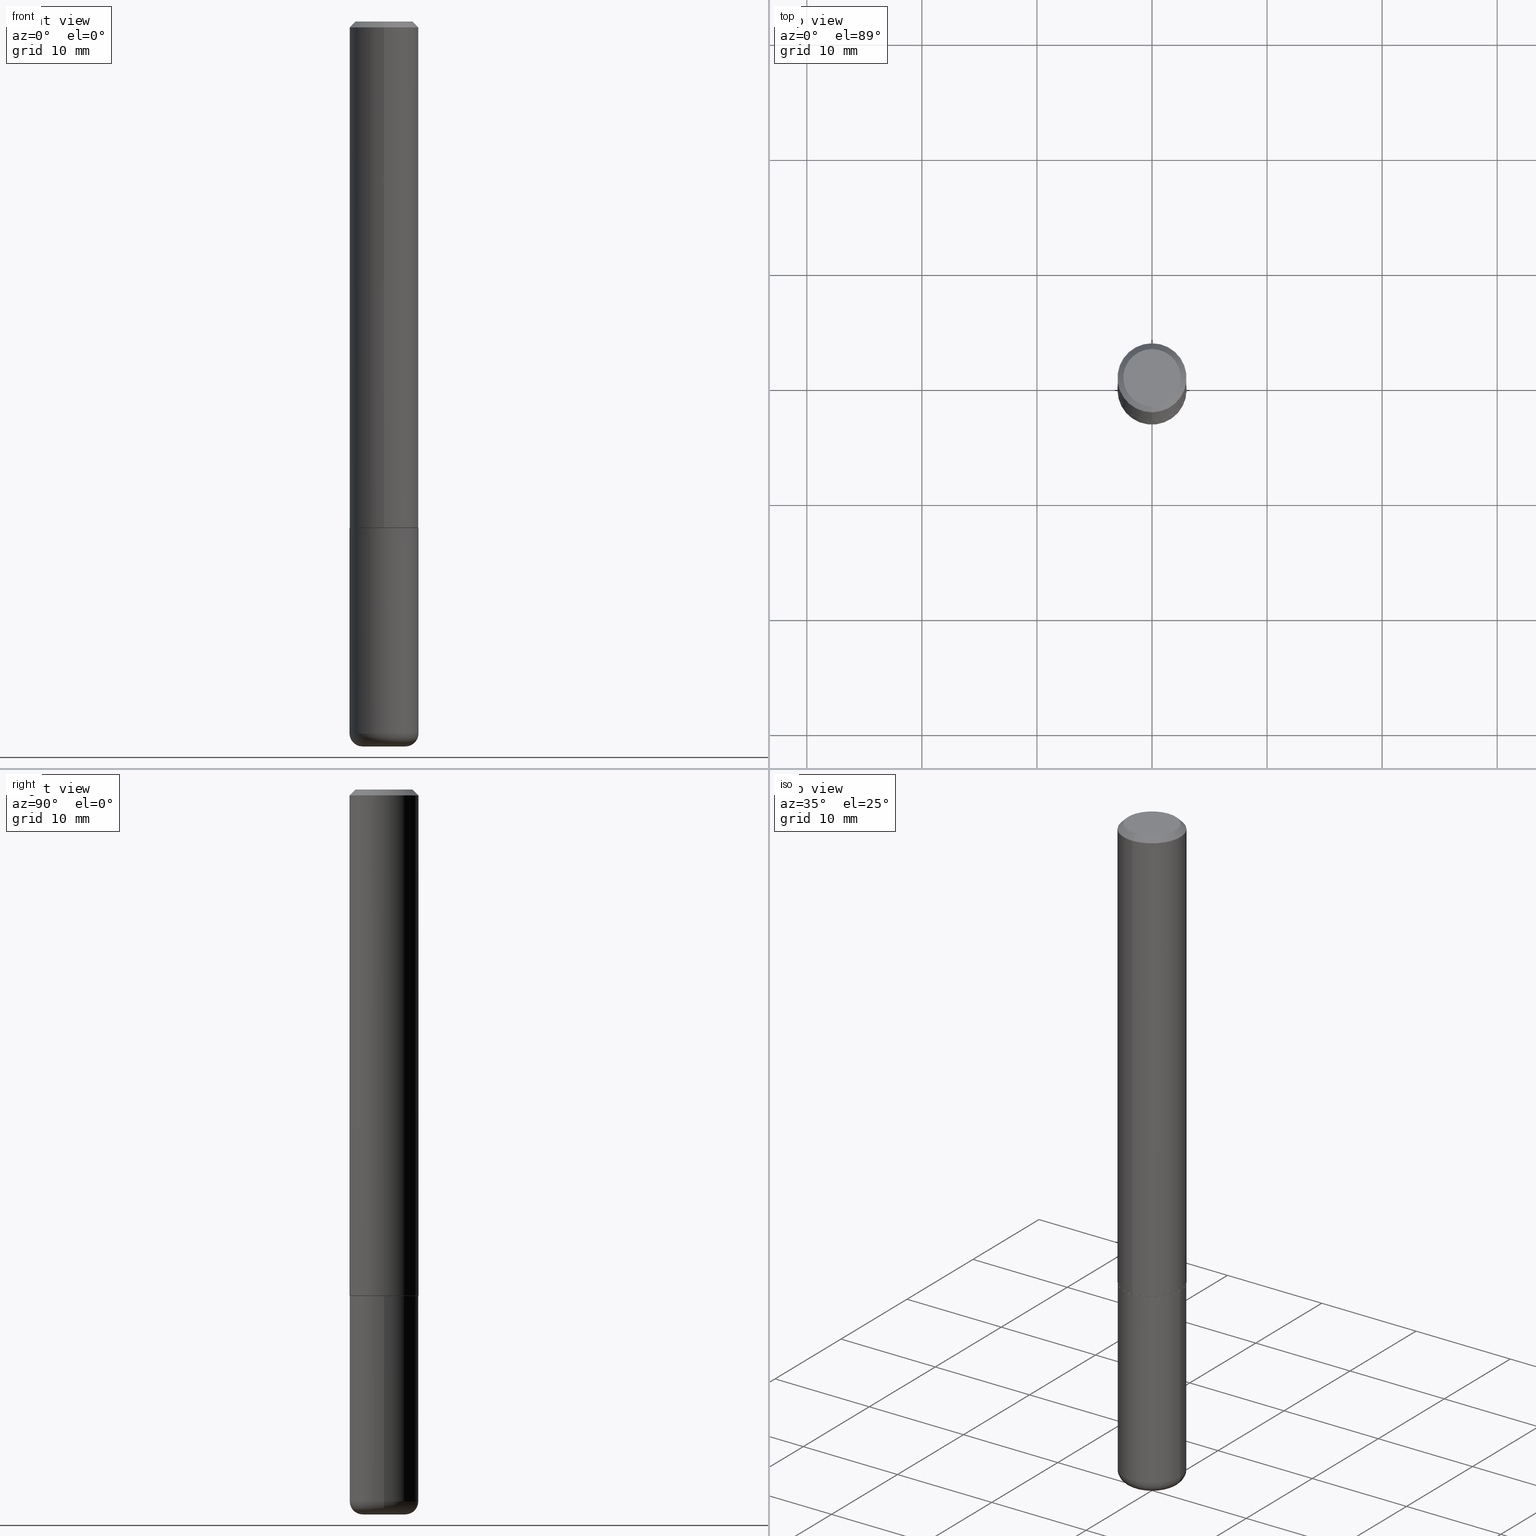
[diagram: canonical four-view strip — front | top / right | iso, engineering-drawing reading convention]
A machine part, canonical four-view strip (front | top / right | iso — engineering-drawing reading convention). The complete STEP part file that produces these views, byte-faithful:
ISO-10303-21;
HEADER;
FILE_DESCRIPTION (( 'STEP AP203' ),
    '1' );
FILE_NAME ('46207.STEP',
    '2024-03-04T18:51:56',
    ( '' ),
    ( '' ),
    'SwSTEP 2.0',
    'SolidWorks 2023',
    '' );
FILE_SCHEMA (( 'CONFIG_CONTROL_DESIGN' ));
ENDSEC;

DATA;
#1 = FACE_OUTER_BOUND ( 'NONE', #54, .T. ) ;
#2 = ADVANCED_FACE ( 'NONE', ( #194 ), #220, .T. ) ;
#3 = AXIS2_PLACEMENT_3D ( 'NONE', #95, #218, #213 ) ;
#4 = VECTOR ( 'NONE', #100, 39.37007874015748143 ) ;
#5 = CARTESIAN_POINT ( 'NONE',  ( 0.000000000000000000, 0.000000000000000000, 0.000000000000000000 ) ) ;
#6 = CARTESIAN_POINT ( 'NONE',  ( 6.065496279980993634E-29, -8.659921164732653758E-15, -2.480299999999999727 ) ) ;
#7 = ORIENTED_EDGE ( 'NONE', *, *, #37, .F. ) ;
#8 = ADVANCED_FACE ( 'NONE', ( #409 ), #376, .F. ) ;
#9 = CARTESIAN_POINT ( 'NONE',  ( 0.1181000000000000383, -6.872981015512730918E-15, -1.732300000000000173 ) ) ;
#10 =( GEOMETRIC_REPRESENTATION_CONTEXT ( 3 ) GLOBAL_UNCERTAINTY_ASSIGNED_CONTEXT ( ( #395 ) ) GLOBAL_UNIT_ASSIGNED_CONTEXT ( ( #299, #335, #173 ) ) REPRESENTATION_CONTEXT ( 'NONE', 'WORKASPACE' ) );
#11 = CARTESIAN_POINT ( 'NONE',  ( 0.1180999999999999273, -9.327841544853345478E-15, -2.435400000000000453 ) ) ;
#12 = EDGE_CURVE ( 'NONE', #184, #346, #63, .T. ) ;
#13 = CARTESIAN_POINT ( 'NONE',  ( 2.023801329356262435E-45, -2.867047296905476188E-31, -8.243683029204983440E-17 ) ) ;
#14 = AXIS2_PLACEMENT_3D ( 'NONE', #162, #93, #23 ) ;
#15 = APPROVAL_DATE_TIME ( #148, #232 ) ;
#16 = ORIENTED_EDGE ( 'NONE', *, *, #24, .F. ) ;
#17 = ORIENTED_EDGE ( 'NONE', *, *, #94, .F. ) ;
#18 = CALENDAR_DATE ( 2024, 4, 3 ) ;
#19 = VECTOR ( 'NONE', #417, 39.37007874015748143 ) ;
#20 = CIRCLE ( 'NONE', #367, 0.09810000000000010378 ) ;
#21 = DATE_AND_TIME ( #239, #75 ) ;
#22 = EDGE_LOOP ( 'NONE', ( #289, #51, #87, #152 ) ) ;
#23 = DIRECTION ( 'NONE',  ( -1.000000000000000000, 6.982962677686265922E-15, -4.876176775795935793E-29 ) ) ;
#24 = EDGE_CURVE ( 'NONE', #352, #89, #130, .T. ) ;
#25 = DIRECTION ( 'NONE',  ( 1.000000000000000000, -6.982962677686258033E-15, 4.883557194083110098E-29 ) ) ;
#26 = LINE ( 'NONE', #29, #283 ) ;
#27 = CARTESIAN_POINT ( 'NONE',  ( -8.246878922347489529E-16, -0.1181000000000001354, 4.107366629272151705E-16 ) ) ;
#28 = CLOSED_SHELL ( 'NONE', ( #78, #293, #351, #223, #238, #150, #273, #8 ) ) ;
#29 = CARTESIAN_POINT ( 'NONE',  ( -8.102248135368175393E-16, -0.1181000000000001077, -0.01999999999999966735 ) ) ;
#30 = LINE ( 'NONE', #286, #19 ) ;
#31 = ORIENTED_EDGE ( 'NONE', *, *, #262, .T. ) ;
#32 = CARTESIAN_POINT ( 'NONE',  ( 4.252748474709313310E-29, -6.024717368237207761E-15, -1.732300000000000173 ) ) ;
#33 = CC_DESIGN_DATE_AND_TIME_ASSIGNMENT ( #21, #371, ( #171 ) ) ;
#34 = ORIENTED_EDGE ( 'NONE', *, *, #403, .T. ) ;
#35 = DIRECTION ( 'NONE',  ( -6.982962677686265922E-15, -1.000000000000000000, 4.626330217890360659E-15 ) ) ;
#36 = AXIS2_PLACEMENT_3D ( 'NONE', #74, #172, #105 ) ;
#37 = EDGE_CURVE ( 'NONE', #160, #128, #334, .T. ) ;
#38 = DIRECTION ( 'NONE',  ( -2.454972276574099560E-29, 3.477871828342207541E-15, 1.000000000000000000 ) ) ;
#39 = DIRECTION ( 'NONE',  ( -2.445468806185136877E-29, 3.491481338843145188E-15, 1.000000000000000000 ) ) ;
#40 = CARTESIAN_POINT ( 'NONE',  ( 0.000000000000000000, 0.000000000000000000, 0.000000000000000000 ) ) ;
#41 = EDGE_LOOP ( 'NONE', ( #410, #249, #34, #206 ) ) ;
#42 = PRODUCT ( '46207', '46207', '', ( #108 ) ) ;
#43 = CIRCLE ( 'NONE', #327, 0.1181000000000000383 ) ;
#44 = DIRECTION ( 'NONE',  ( 2.454972276574099560E-29, -3.477871828342207541E-15, -1.000000000000000000 ) ) ;
#45 = EDGE_CURVE ( 'NONE', #216, #62, #43, .T. ) ;
#46 = EDGE_LOOP ( 'NONE', ( #258, #307, #197, #7 ) ) ;
#47 = PERSON_AND_ORGANIZATION ( #298, #112 ) ;
#48 = AXIS2_PLACEMENT_3D ( 'NONE', #391, #198, #319 ) ;
#49 = LOCAL_TIME ( 13, 51, 56.00000000000000000, #310 ) ;
#50 = DIRECTION ( 'NONE',  ( -2.454972276574099560E-29, 3.477871828342207541E-15, 1.000000000000000000 ) ) ;
#51 = ORIENTED_EDGE ( 'NONE', *, *, #329, .T. ) ;
#52 = EDGE_LOOP ( 'NONE', ( #287, #31, #253, #57 ) ) ;
#53 = PERSON_AND_ORGANIZATION ( #298, #112 ) ;
#54 = EDGE_LOOP ( 'NONE', ( #387, #243, #209, #308 ) ) ;
#55 = PERSON_AND_ORGANIZATION_ROLE ( 'design_owner' ) ;
#56 = EDGE_LOOP ( 'NONE', ( #242, #190, #324, #406 ) ) ;
#57 = ORIENTED_EDGE ( 'NONE', *, *, #132, .F. ) ;
#58 = APPLICATION_CONTEXT ( 'configuration controlled 3d designs of mechanical parts and assemblies' ) ;
#59 = CARTESIAN_POINT ( 'NONE',  ( 0.000000000000000000, 0.000000000000000000, 0.000000000000000000 ) ) ;
#60 = DIRECTION ( 'NONE',  ( -2.454972276574099560E-29, 3.477871828342207541E-15, 1.000000000000000000 ) ) ;
#61 = CARTESIAN_POINT ( 'NONE',  ( 0.000000000000000000, 0.000000000000000000, 0.000000000000000000 ) ) ;
#62 = VERTEX_POINT ( 'NONE', #85 ) ;
#63 = CIRCLE ( 'NONE', #88, 0.1171000000000000096 ) ;
#64 = EDGE_CURVE ( 'NONE', #352, #216, #321, .T. ) ;
#65 = DIRECTION ( 'NONE',  ( -2.454972276574099560E-29, 3.477871828342207541E-15, 1.000000000000000000 ) ) ;
#66 = DIRECTION ( 'NONE',  ( 1.000000000000000000, -6.982962677686270655E-15, 0.000000000000000000 ) ) ;
#67 = ORIENTED_EDGE ( 'NONE', *, *, #366, .T. ) ;
#68 = CARTESIAN_POINT ( 'NONE',  ( -0.07320000000000005669, -7.901903281921091934E-15, -2.480299999999999727 ) ) ;
#69 = CC_DESIGN_APPROVAL ( #232, ( #171 ) ) ;
#70 = EDGE_CURVE ( 'NONE', #325, #315, #30, .T. ) ;
#71 = FACE_OUTER_BOUND ( 'NONE', #250, .T. ) ;
#72 =( LENGTH_UNIT ( ) NAMED_UNIT ( * ) SI_UNIT ( $, .METRE. ) );
#73 = CONICAL_SURFACE ( 'NONE', #149, 0.1171000000000000096, 0.7853981633975165577 ) ;
#74 = CARTESIAN_POINT ( 'NONE',  ( 6.065496279980993634E-29, -8.659921164732653758E-15, -2.480299999999999727 ) ) ;
#75 = LOCAL_TIME ( 13, 51, 56.00000000000000000, #110 ) ;
#76 = PERSON_AND_ORGANIZATION_ROLE ( 'creator' ) ;
#77 = DIRECTION ( 'NONE',  ( -6.982962677686266711E-15, -1.000000000000000000, 2.332918867347790727E-15 ) ) ;
#78 = ADVANCED_FACE ( 'NONE', ( #374 ), #170, .T. ) ;
#79 = DIRECTION ( 'NONE',  ( -2.454972276574099560E-29, 3.477871828342207541E-15, 1.000000000000000000 ) ) ;
#80 = CIRCLE ( 'NONE', #164, 0.07320000000000005669 ) ;
#81 = CIRCLE ( 'NONE', #276, 0.1181000000000000383 ) ;
#82 = PERSON_AND_ORGANIZATION ( #298, #112 ) ;
#83 = CARTESIAN_POINT ( 'NONE',  ( 4.252748474709313310E-29, -6.024717368237207761E-15, -1.732300000000000173 ) ) ;
#84 = DIRECTION ( 'NONE',  ( 1.000000000000000000, 0.000000000000000000, 0.000000000000000000 ) ) ;
#85 = CARTESIAN_POINT ( 'NONE',  ( 8.246878922347486570E-16, 0.1180999999999999689, -0.02000000000000048614 ) ) ;
#86 = EDGE_CURVE ( 'NONE', #62, #216, #404, .T. ) ;
#87 = ORIENTED_EDGE ( 'NONE', *, *, #64, .T. ) ;
#88 = AXIS2_PLACEMENT_3D ( 'NONE', #349, #386, #277 ) ;
#89 = VERTEX_POINT ( 'NONE', #97 ) ;
#90 = DIRECTION ( 'NONE',  ( -2.454972276574098999E-29, 3.477871828342207935E-15, 1.000000000000000000 ) ) ;
#91 = DIRECTION ( 'NONE',  ( -2.454972276574099840E-29, 3.477871828342207935E-15, 1.000000000000000000 ) ) ;
#92 = ORIENTED_EDGE ( 'NONE', *, *, #12, .F. ) ;
#93 = DIRECTION ( 'NONE',  ( 2.438088387897960049E-29, -3.491481338843145188E-15, -1.000000000000000000 ) ) ;
#94 = EDGE_CURVE ( 'NONE', #160, #322, #80, .T. ) ;
#95 = CARTESIAN_POINT ( 'NONE',  ( 4.250293502432739127E-29, -6.021239496408864646E-15, -1.731300000000000283 ) ) ;
#96 = LINE ( 'NONE', #265, #405 ) ;
#97 = CARTESIAN_POINT ( 'NONE',  ( 8.391509709327008768E-16, 0.1180999999999941957, -1.731300000000000727 ) ) ;
#98 = AXIS2_PLACEMENT_3D ( 'NONE', #133, #44, #138 ) ;
#99 = EDGE_LOOP ( 'NONE', ( #182, #113, #338, #282 ) ) ;
#100 = DIRECTION ( 'NONE',  ( -2.454972276574099840E-29, 3.477871828342207935E-15, 1.000000000000000000 ) ) ;
#101 = APPLICATION_PROTOCOL_DEFINITION ( 'international standard', 'config_control_design', 1994, #372 ) ;
#102 = MANIFOLD_SOLID_BREP ( 'Body-Move/Copy2[2]', #28 ) ;
#103 = AXIS2_PLACEMENT_3D ( 'NONE', #311, #154, #156 ) ;
#104 = CARTESIAN_POINT ( 'NONE',  ( -8.246878922347070446E-16, -0.1181000000000062417, -1.731299999999999617 ) ) ;
#105 = DIRECTION ( 'NONE',  ( 1.000000000000000000, -6.982962677686279332E-15, 0.000000000000000000 ) ) ;
#106 = AXIS2_PLACEMENT_3D ( 'NONE', #211, #115, #251 ) ;
#107 = APPROVAL_PERSON_ORGANIZATION ( #53, #306, #247 ) ;
#108 = MECHANICAL_CONTEXT ( 'NONE', #372, 'mechanical' ) ;
#109 = COORDINATED_UNIVERSAL_TIME_OFFSET ( 5, 0, .BEHIND. ) ;
#110 = COORDINATED_UNIVERSAL_TIME_OFFSET ( 5, 0, .BEHIND. ) ;
#111 = AXIS2_PLACEMENT_3D ( 'NONE', #241, #79, #369 ) ;
#112 = ORGANIZATION ( 'UNSPECIFIED', 'UNSPECIFIED', '' ) ;
#113 = ORIENTED_EDGE ( 'NONE', *, *, #392, .T. ) ;
#114 = EDGE_CURVE ( 'NONE', #128, #325, #136, .T. ) ;
#115 = DIRECTION ( 'NONE',  ( -6.982962677686266711E-15, -1.000000000000000000, 3.491481338843145583E-15 ) ) ;
#116 = APPROVAL_ROLE ( '' ) ;
#117 = VERTEX_POINT ( 'NONE', #137 ) ;
#118 = FACE_OUTER_BOUND ( 'NONE', #41, .T. ) ;
#119 = ORIENTED_EDGE ( 'NONE', *, *, #333, .F. ) ;
#120 = FACE_OUTER_BOUND ( 'NONE', #46, .T. ) ;
#121 = CONICAL_SURFACE ( 'NONE', #363, 0.1181000000000000383, 0.7853981633974465026 ) ;
#122 = CONICAL_SURFACE ( 'NONE', #98, 0.1181000000000000383, 0.7853981633974465026 ) ;
#123 = CARTESIAN_POINT ( 'NONE',  ( 5.955694730583281585E-29, -8.503153652618597215E-15, -2.435400000000000009 ) ) ;
#124 = DIRECTION ( 'NONE',  ( -2.445468806185136597E-29, 3.491481338843145583E-15, 1.000000000000000000 ) ) ;
#125 = ORIENTED_EDGE ( 'NONE', *, *, #344, .F. ) ;
#126 = DIRECTION ( 'NONE',  ( -2.445468806185136597E-29, 3.491481338843145583E-15, 1.000000000000000000 ) ) ;
#127 = CARTESIAN_POINT ( 'NONE',  ( 5.955694730583282706E-29, -8.503153652618598793E-15, -2.435400000000000453 ) ) ;
#128 = VERTEX_POINT ( 'NONE', #11 ) ;
#129 = CARTESIAN_POINT ( 'NONE',  ( 4.236285612954512953E-29, -6.048293123277982656E-15, -1.732300000000000173 ) ) ;
#130 = CIRCLE ( 'NONE', #3, 0.1181000000000002187 ) ;
#131 = DIRECTION ( 'NONE',  ( 1.000000000000000000, -6.982962677686270655E-15, 0.000000000000000000 ) ) ;
#132 = EDGE_CURVE ( 'NONE', #178, #62, #139, .T. ) ;
#133 = CARTESIAN_POINT ( 'NONE',  ( 4.909944553148218457E-31, -6.955743656684441311E-17, -0.02000000000000007674 ) ) ;
#134 = CARTESIAN_POINT ( 'NONE',  ( -8.177049295570192554E-16, -0.1171000000000060326, -1.732299999999999951 ) ) ;
#135 = PRODUCT_DEFINITION_SHAPE ( 'NONE', 'NONE',  #302 ) ;
#136 = CIRCLE ( 'NONE', #317, 0.1181000000000000383 ) ;
#137 = CARTESIAN_POINT ( 'NONE',  ( -7.416198335591027009E-16, -0.09810000000000010378, 2.587423960683210956E-16 ) ) ;
#138 = DIRECTION ( 'NONE',  ( 6.982962677686265922E-15, 1.000000000000000000, -3.469747663417776213E-15 ) ) ;
#139 = LINE ( 'NONE', #235, #399 ) ;
#140 = DIRECTION ( 'NONE',  ( -2.454972276574099560E-29, 3.477871828342207541E-15, 1.000000000000000000 ) ) ;
#141 = CALENDAR_DATE ( 2024, 4, 3 ) ;
#142 = EDGE_CURVE ( 'NONE', #346, #184, #275, .T. ) ;
#143 = DIRECTION ( 'NONE',  ( 0.000000000000000000, 0.000000000000000000, 1.000000000000000000 ) ) ;
#144 = CARTESIAN_POINT ( 'NONE',  ( 0.07320000000000005669, -9.171074032739288935E-15, -2.480299999999999727 ) ) ;
#145 = ORIENTED_EDGE ( 'NONE', *, *, #114, .T. ) ;
#146 = PERSON_AND_ORGANIZATION_ROLE ( 'design_supplier' ) ;
#147 = ADVANCED_BREP_SHAPE_REPRESENTATION ( '46207', ( #240, #102, #185 ), #10 ) ;
#148 = DATE_AND_TIME ( #18, #380 ) ;
#149 = AXIS2_PLACEMENT_3D ( 'NONE', #336, #174, #77 ) ;
#150 = ADVANCED_FACE ( 'NONE', ( #118 ), #73, .T. ) ;
#151 = AXIS2_PLACEMENT_3D ( 'NONE', #32, #90, #214 ) ;
#152 = ORIENTED_EDGE ( 'NONE', *, *, #86, .F. ) ;
#153 = SECURITY_CLASSIFICATION_LEVEL ( 'unclassified' ) ;
#154 = DIRECTION ( 'NONE',  ( 2.454972276574098999E-29, -3.477871828342207935E-15, -1.000000000000000000 ) ) ;
#155 = CARTESIAN_POINT ( 'NONE',  ( 4.236285612954512953E-29, -6.048293123277982656E-15, -1.732300000000000173 ) ) ;
#156 = DIRECTION ( 'NONE',  ( 6.982962677686265922E-15, 1.000000000000000000, -3.477871828342207935E-15 ) ) ;
#157 = EDGE_CURVE ( 'NONE', #117, #178, #389, .T. ) ;
#158 = CARTESIAN_POINT ( 'NONE',  ( 4.909944553148218457E-31, -6.955743656684441311E-17, -0.02000000000000007674 ) ) ;
#159 = AXIS2_PLACEMENT_3D ( 'NONE', #123, #257, #25 ) ;
#160 = VERTEX_POINT ( 'NONE', #144 ) ;
#161 = PLANE ( 'NONE',  #151 ) ;
#162 = CARTESIAN_POINT ( 'NONE',  ( 1.899314013744844188E-28, 9.853200634954365119E-15, -2.480300000000000171 ) ) ;
#163 = FACE_OUTER_BOUND ( 'NONE', #280, .T. ) ;
#164 = AXIS2_PLACEMENT_3D ( 'NONE', #6, #222, #365 ) ;
#165 = AXIS2_PLACEMENT_3D ( 'NONE', #226, #388, #35 ) ;
#166 = LENGTH_MEASURE_WITH_UNIT ( LENGTH_MEASURE( 0.02539999999999999897 ), #72 );
#167 = DIRECTION ( 'NONE',  ( -6.982962677686265922E-15, -1.000000000000000000, 3.469747663417776213E-15 ) ) ;
#168 = LINE ( 'NONE', #266, #221 ) ;
#169 = EDGE_CURVE ( 'NONE', #178, #117, #20, .T. ) ;
#170 = CONICAL_SURFACE ( 'NONE', #296, 0.1171000000000000096, 0.7853981633975165577 ) ;
#171 = SECURITY_CLASSIFICATION ( '', '', #153 ) ;
#172 = DIRECTION ( 'NONE',  ( -2.445468806185136597E-29, 3.491481338843145583E-15, 1.000000000000000000 ) ) ;
#173 =( NAMED_UNIT ( * ) SI_UNIT ( $, .STERADIAN. ) SOLID_ANGLE_UNIT ( ) );
#174 = DIRECTION ( 'NONE',  ( -2.454972276574099560E-29, 3.477871828342207541E-15, 1.000000000000000000 ) ) ;
#175 = PERSON_AND_ORGANIZATION ( #298, #112 ) ;
#176 = FACE_OUTER_BOUND ( 'NONE', #412, .T. ) ;
#177 = CIRCLE ( 'NONE', #48, 0.04489999999999977343 ) ;
#178 = VERTEX_POINT ( 'NONE', #337 ) ;
#179 = DATE_AND_TIME ( #141, #49 ) ;
#180 = ORIENTED_EDGE ( 'NONE', *, *, #142, .F. ) ;
#181 = APPROVAL_STATUS ( 'not_yet_approved' ) ;
#182 = ORIENTED_EDGE ( 'NONE', *, *, #245, .F. ) ;
#183 = APPLICATION_PROTOCOL_DEFINITION ( 'international standard', 'config_control_design', 1994, #58 ) ;
#184 = VERTEX_POINT ( 'NONE', #212 ) ;
#185 = AXIS2_PLACEMENT_3D ( 'NONE', #373, #143, #84 ) ;
#186 = ORIENTED_EDGE ( 'NONE', *, *, #12, .T. ) ;
#187 = DIRECTION ( 'NONE',  ( 1.000000000000000000, -6.982962677686258033E-15, 4.883557194083110098E-29 ) ) ;
#188 = CARTESIAN_POINT ( 'NONE',  ( 4.909944553148218457E-31, -6.955743656684441311E-17, -0.02000000000000007674 ) ) ;
#189 = PLANE ( 'NONE',  #193 ) ;
#190 = ORIENTED_EDGE ( 'NONE', *, *, #169, .F. ) ;
#191 = EDGE_LOOP ( 'NONE', ( #304, #284 ) ) ;
#192 = CYLINDRICAL_SURFACE ( 'NONE', #229, 0.1181000000000001354 ) ;
#193 = AXIS2_PLACEMENT_3D ( 'NONE', #129, #323, #354 ) ;
#194 = FACE_OUTER_BOUND ( 'NONE', #99, .T. ) ;
#195 = FACE_OUTER_BOUND ( 'NONE', #415, .T. ) ;
#196 = ADVANCED_FACE ( 'NONE', ( #176 ), #301, .T. ) ;
#197 = ORIENTED_EDGE ( 'NONE', *, *, #114, .F. ) ;
#198 = DIRECTION ( 'NONE',  ( 7.105427357601001859E-15, 1.000000000000000000, -3.491481338843145583E-15 ) ) ;
#199 = TOROIDAL_SURFACE ( 'NONE', #271, 0.07320000000000005669, 0.04489999999999977343 ) ;
#200 = CC_DESIGN_SECURITY_CLASSIFICATION ( #171, ( #292 ) ) ;
#201 = AXIS2_PLACEMENT_3D ( 'NONE', #13, #50, #205 ) ;
#202 = DIRECTION ( 'NONE',  ( 4.937700262164538576E-15, 0.7071067811865437980, -0.7071067811865512365 ) ) ;
#203 = ADVANCED_FACE ( 'NONE', ( #120 ), #199, .T. ) ;
#204 = APPROVAL_ROLE ( '' ) ;
#205 = DIRECTION ( 'NONE',  ( -6.982962677686267499E-15, -1.000000000000000000, 3.477871828342207541E-15 ) ) ;
#206 = ORIENTED_EDGE ( 'NONE', *, *, #329, .F. ) ;
#207 = CIRCLE ( 'NONE', #165, 0.1181000000000002187 ) ;
#208 = PERSON_AND_ORGANIZATION ( #298, #112 ) ;
#209 = ORIENTED_EDGE ( 'NONE', *, *, #45, .F. ) ;
#210 = APPROVAL_DATE_TIME ( #300, #228 ) ;
#211 = CARTESIAN_POINT ( 'NONE',  ( 0.07320000000000005669, -9.014306520625232393E-15, -2.435400000000000009 ) ) ;
#212 = CARTESIAN_POINT ( 'NONE',  ( -8.177049295570192554E-16, -0.1171000000000060326, -1.732299999999999951 ) ) ;
#213 = DIRECTION ( 'NONE',  ( -6.982962677686265922E-15, -1.000000000000000000, 4.626330217890360659E-15 ) ) ;
#214 = DIRECTION ( 'NONE',  ( -6.982962677686265922E-15, -1.000000000000000000, 3.477871828342207935E-15 ) ) ;
#215 = ADVANCED_FACE ( 'NONE', ( #264 ), #261, .T. ) ;
#216 = VERTEX_POINT ( 'NONE', #314 ) ;
#217 = FACE_OUTER_BOUND ( 'NONE', #56, .T. ) ;
#218 = DIRECTION ( 'NONE',  ( -2.454972276574099560E-29, 3.477871828342207541E-15, 1.000000000000000000 ) ) ;
#219 = DIRECTION ( 'NONE',  ( 1.000000000000000000, -6.982962677686266711E-15, 4.876176775795935793E-29 ) ) ;
#220 = TOROIDAL_SURFACE ( 'NONE', #159, 0.07320000000000005669, 0.04489999999999977343 ) ;
#221 = VECTOR ( 'NONE', #39, 39.37007874015748143 ) ;
#222 = DIRECTION ( 'NONE',  ( -2.445468806185136597E-29, 3.491481338843145583E-15, 1.000000000000000000 ) ) ;
#223 = ADVANCED_FACE ( 'NONE', ( #217 ), #121, .T. ) ;
#224 = ORIENTED_EDGE ( 'NONE', *, *, #340, .T. ) ;
#225 = DIRECTION ( 'NONE',  ( -6.982962677686265922E-15, -1.000000000000000000, 3.477871828342207541E-15 ) ) ;
#226 = CARTESIAN_POINT ( 'NONE',  ( 4.250293502432739127E-29, -6.021239496408864646E-15, -1.731300000000000283 ) ) ;
#227 = DIRECTION ( 'NONE',  ( -2.454972276574099560E-29, 3.477871828342207541E-15, 1.000000000000000000 ) ) ;
#228 = APPROVAL ( #401, 'UNSPECIFIED' ) ;
#229 = AXIS2_PLACEMENT_3D ( 'NONE', #5, #65, #281 ) ;
#230 = DIRECTION ( 'NONE',  ( -6.982962677686266711E-15, -1.000000000000000000, 2.332918867347790727E-15 ) ) ;
#231 = AXIS2_PLACEMENT_3D ( 'NONE', #40, #268, #295 ) ;
#232 = APPROVAL ( #408, 'UNSPECIFIED' ) ;
#233 = LINE ( 'NONE', #134, #248 ) ;
#234 = FACE_OUTER_BOUND ( 'NONE', #52, .T. ) ;
#235 = CARTESIAN_POINT ( 'NONE',  ( 8.246878922347486570E-16, 0.1180999999999999689, -0.02000000000000048614 ) ) ;
#236 = AXIS2_PLACEMENT_3D ( 'NONE', #332, #227, #167 ) ;
#237 = CIRCLE ( 'NONE', #303, 0.1181000000000000383 ) ;
#238 = ADVANCED_FACE ( 'NONE', ( #255 ), #192, .T. ) ;
#239 = CALENDAR_DATE ( 2024, 4, 3 ) ;
#240 = MANIFOLD_SOLID_BREP ( 'Body-Move/Copy2[1]', #246 ) ;
#241 = CARTESIAN_POINT ( 'NONE',  ( 4.252748474709313310E-29, -6.024717368237207761E-15, -1.732300000000000173 ) ) ;
#242 = ORIENTED_EDGE ( 'NONE', *, *, #262, .F. ) ;
#243 = ORIENTED_EDGE ( 'NONE', *, *, #279, .T. ) ;
#244 = PERSON_AND_ORGANIZATION ( #298, #112 ) ;
#245 = EDGE_CURVE ( 'NONE', #322, #325, #177, .T. ) ;
#246 = CLOSED_SHELL ( 'NONE', ( #414, #203, #269, #196, #2, #215 ) ) ;
#247 = APPROVAL_ROLE ( '' ) ;
#248 = VECTOR ( 'NONE', #294, 39.37007874015748143 ) ;
#249 = ORIENTED_EDGE ( 'NONE', *, *, #142, .T. ) ;
#250 = EDGE_LOOP ( 'NONE', ( #145, #360, #119, #263 ) ) ;
#251 = DIRECTION ( 'NONE',  ( 1.000000000000000000, -6.982962677686244622E-15, 0.000000000000000000 ) ) ;
#252 = ORIENTED_EDGE ( 'NONE', *, *, #344, .T. ) ;
#253 = ORIENTED_EDGE ( 'NONE', *, *, #45, .T. ) ;
#254 = LOCAL_TIME ( 13, 51, 56.00000000000000000, #407 ) ;
#255 = FACE_OUTER_BOUND ( 'NONE', #22, .T. ) ;
#256 = PRODUCT_RELATED_PRODUCT_CATEGORY ( 'detail', '', ( #42 ) ) ;
#257 = DIRECTION ( 'NONE',  ( -2.445468806185136597E-29, 3.491481338843145583E-15, 1.000000000000000000 ) ) ;
#258 = ORIENTED_EDGE ( 'NONE', *, *, #94, .T. ) ;
#259 = ORIENTED_EDGE ( 'NONE', *, *, #403, .F. ) ;
#260 = DIMENSIONAL_EXPONENTS ( 1.000000000000000000, 0.000000000000000000, 0.000000000000000000, 0.000000000000000000, 0.000000000000000000, 0.000000000000000000, 0.000000000000000000 ) ;
#261 = PLANE ( 'NONE',  #14 ) ;
#262 = EDGE_CURVE ( 'NONE', #117, #216, #26, .T. ) ;
#263 = ORIENTED_EDGE ( 'NONE', *, *, #366, .F. ) ;
#264 = FACE_OUTER_BOUND ( 'NONE', #348, .T. ) ;
#265 = CARTESIAN_POINT ( 'NONE',  ( 8.320455435751198860E-16, 0.1170999999999939867, -1.732300000000000617 ) ) ;
#266 = CARTESIAN_POINT ( 'NONE',  ( 0.1181000000000000383, -8.246878922347483612E-16, 5.758764772215001842E-30 ) ) ;
#267 = DESIGN_CONTEXT ( 'detailed design', #58, 'design' ) ;
#268 = DIRECTION ( 'NONE',  ( -2.445468806185136597E-29, 3.491481338843145583E-15, 1.000000000000000000 ) ) ;
#269 = ADVANCED_FACE ( 'NONE', ( #163 ), #189, .F. ) ;
#270 = CARTESIAN_POINT ( 'NONE',  ( 8.355982572539209817E-16, 0.1170999999999939867, -1.732300000000000617 ) ) ;
#271 = AXIS2_PLACEMENT_3D ( 'NONE', #358, #385, #187 ) ;
#272 = APPROVAL_DATE_TIME ( #179, #306 ) ;
#273 = ADVANCED_FACE ( 'NONE', ( #195 ), #161, .F. ) ;
#274 = PERSON_AND_ORGANIZATION_ROLE ( 'classification_officer' ) ;
#275 = CIRCLE ( 'NONE', #111, 0.1171000000000000096 ) ;
#276 = AXIS2_PLACEMENT_3D ( 'NONE', #291, #362, #131 ) ;
#277 = DIRECTION ( 'NONE',  ( -6.982962677686266711E-15, -1.000000000000000000, 2.332918867347790727E-15 ) ) ;
#278 = PERSON_AND_ORGANIZATION ( #298, #112 ) ;
#279 = EDGE_CURVE ( 'NONE', #89, #62, #288, .T. ) ;
#280 = EDGE_LOOP ( 'NONE', ( #355, #252 ) ) ;
#281 = DIRECTION ( 'NONE',  ( -6.982962677686265922E-15, -1.000000000000000000, 3.477871828342207541E-15 ) ) ;
#282 = ORIENTED_EDGE ( 'NONE', *, *, #316, .F. ) ;
#283 = VECTOR ( 'NONE', #382, 39.37007874015748143 ) ;
#284 = ORIENTED_EDGE ( 'NONE', *, *, #157, .T. ) ;
#285 = DIRECTION ( 'NONE',  ( -2.454972276574099560E-29, 3.477871828342207541E-15, 1.000000000000000000 ) ) ;
#286 = CARTESIAN_POINT ( 'NONE',  ( -0.1181000000000000383, 8.391509709326785915E-16, -5.809262341591045886E-30 ) ) ;
#287 = ORIENTED_EDGE ( 'NONE', *, *, #157, .F. ) ;
#288 = LINE ( 'NONE', #416, #4 ) ;
#289 = ORIENTED_EDGE ( 'NONE', *, *, #279, .F. ) ;
#290 = DIRECTION ( 'NONE',  ( 6.982962677686265922E-15, 1.000000000000000000, -3.469747663417776213E-15 ) ) ;
#291 = CARTESIAN_POINT ( 'NONE',  ( 4.236285612954512953E-29, -6.048293123277982656E-15, -1.732300000000000173 ) ) ;
#292 = PRODUCT_DEFINITION_FORMATION_WITH_SPECIFIED_SOURCE ( 'ANY', '', #42, .NOT_KNOWN. ) ;
#293 = ADVANCED_FACE ( 'NONE', ( #1 ), #350, .T. ) ;
#294 = DIRECTION ( 'NONE',  ( -4.937700262164884886E-15, -0.7071067811865933139, 0.7071067811865017205 ) ) ;
#295 = DIRECTION ( 'NONE',  ( 1.000000000000000000, -6.982962677686266711E-15, 4.876176775795935793E-29 ) ) ;
#296 = AXIS2_PLACEMENT_3D ( 'NONE', #83, #38, #230 ) ;
#297 = CIRCLE ( 'NONE', #328, 0.1181000000000000383 ) ;
#298 = PERSON ( 'UNSPECIFIED', 'UNSPECIFIED', 'UNSPECIFIED', ('UNSPECIFIED'), ('UNSPECIFIED'), ('UNSPECIFIED') ) ;
#299 =( CONVERSION_BASED_UNIT ( 'INCH', #166 ) LENGTH_UNIT ( ) NAMED_UNIT ( #260 ) );
#300 = DATE_AND_TIME ( #402, #254 ) ;
#301 = CYLINDRICAL_SURFACE ( 'NONE', #379, 0.1181000000000000383 ) ;
#302 = PRODUCT_DEFINITION ( 'UNKNOWN', '', #292, #267 ) ;
#303 = AXIS2_PLACEMENT_3D ( 'NONE', #361, #126, #313 ) ;
#304 = ORIENTED_EDGE ( 'NONE', *, *, #169, .T. ) ;
#305 = PERSON_AND_ORGANIZATION ( #298, #112 ) ;
#306 = APPROVAL ( #181, 'UNSPECIFIED' ) ;
#307 = ORIENTED_EDGE ( 'NONE', *, *, #245, .T. ) ;
#308 = ORIENTED_EDGE ( 'NONE', *, *, #64, .F. ) ;
#309 = PERSON_AND_ORGANIZATION_ROLE ( 'creator' ) ;
#310 = COORDINATED_UNIVERSAL_TIME_OFFSET ( 5, 0, .BEHIND. ) ;
#311 = CARTESIAN_POINT ( 'NONE',  ( 6.850286386810235398E-16, 0.09810000000000010378, -3.823976415063958595E-16 ) ) ;
#312 = CC_DESIGN_PERSON_AND_ORGANIZATION_ASSIGNMENT ( #305, #146, ( #292 ) ) ;
#313 = DIRECTION ( 'NONE',  ( 1.000000000000000000, -6.982962677686270655E-15, 0.000000000000000000 ) ) ;
#314 = CARTESIAN_POINT ( 'NONE',  ( -8.102248135368175393E-16, -0.1181000000000001077, -0.01999999999999966735 ) ) ;
#315 = VERTEX_POINT ( 'NONE', #418 ) ;
#316 = EDGE_CURVE ( 'NONE', #325, #128, #237, .T. ) ;
#317 = AXIS2_PLACEMENT_3D ( 'NONE', #127, #359, #66 ) ;
#318 = CC_DESIGN_APPROVAL ( #228, ( #302 ) ) ;
#319 = DIRECTION ( 'NONE',  ( -1.000000000000000000, 7.105427357601012903E-15, 0.000000000000000000 ) ) ;
#320 = CC_DESIGN_PERSON_AND_ORGANIZATION_ASSIGNMENT ( #47, #274, ( #171 ) ) ;
#321 = LINE ( 'NONE', #27, #396 ) ;
#322 = VERTEX_POINT ( 'NONE', #68 ) ;
#323 = DIRECTION ( 'NONE',  ( 2.438088387897960049E-29, -3.491481338843145188E-15, -1.000000000000000000 ) ) ;
#324 = ORIENTED_EDGE ( 'NONE', *, *, #132, .T. ) ;
#325 = VERTEX_POINT ( 'NONE', #326 ) ;
#326 = CARTESIAN_POINT ( 'NONE',  ( -0.1180999999999999273, -7.664002681685919807E-15, -2.435400000000000453 ) ) ;
#327 = AXIS2_PLACEMENT_3D ( 'NONE', #188, #60, #383 ) ;
#328 = AXIS2_PLACEMENT_3D ( 'NONE', #155, #398, #330 ) ;
#329 = EDGE_CURVE ( 'NONE', #89, #352, #207, .T. ) ;
#330 = DIRECTION ( 'NONE',  ( 1.000000000000000000, -6.982962677686270655E-15, 0.000000000000000000 ) ) ;
#331 = CYLINDRICAL_SURFACE ( 'NONE', #231, 0.1181000000000000383 ) ;
#332 = CARTESIAN_POINT ( 'NONE',  ( 4.909944553148218457E-31, -6.955743656684441311E-17, -0.02000000000000007674 ) ) ;
#333 = EDGE_CURVE ( 'NONE', #377, #315, #81, .T. ) ;
#334 = CIRCLE ( 'NONE', #106, 0.04489999999999977343 ) ;
#335 =( NAMED_UNIT ( * ) PLANE_ANGLE_UNIT ( ) SI_UNIT ( $, .RADIAN. ) );
#336 = CARTESIAN_POINT ( 'NONE',  ( 4.252748474709313310E-29, -6.024717368237207761E-15, -1.732300000000000173 ) ) ;
#337 = CARTESIAN_POINT ( 'NONE',  ( 7.548582654578861477E-16, 0.09810000000000010378, -4.236160566524207151E-16 ) ) ;
#338 = ORIENTED_EDGE ( 'NONE', *, *, #37, .T. ) ;
#339 = DATE_AND_TIME ( #342, #347 ) ;
#340 = EDGE_CURVE ( 'NONE', #346, #89, #96, .T. ) ;
#341 = EDGE_LOOP ( 'NONE', ( #186, #224, #16, #259 ) ) ;
#342 = CALENDAR_DATE ( 2024, 4, 3 ) ;
#343 = COORDINATED_UNIVERSAL_TIME_OFFSET ( 5, 0, .BEHIND. ) ;
#344 = EDGE_CURVE ( 'NONE', #315, #377, #297, .T. ) ;
#345 = CC_DESIGN_PERSON_AND_ORGANIZATION_ASSIGNMENT ( #175, #76, ( #292 ) ) ;
#346 = VERTEX_POINT ( 'NONE', #270 ) ;
#347 = LOCAL_TIME ( 13, 51, 56.00000000000000000, #343 ) ;
#348 = EDGE_LOOP ( 'NONE', ( #17, #384 ) ) ;
#349 = CARTESIAN_POINT ( 'NONE',  ( 4.252748474709313310E-29, -6.024717368237207761E-15, -1.732300000000000173 ) ) ;
#350 = CYLINDRICAL_SURFACE ( 'NONE', #368, 0.1181000000000001354 ) ;
#351 = ADVANCED_FACE ( 'NONE', ( #234 ), #122, .T. ) ;
#352 = VERTEX_POINT ( 'NONE', #104 ) ;
#353 = ORIENTED_EDGE ( 'NONE', *, *, #70, .F. ) ;
#354 = DIRECTION ( 'NONE',  ( -1.000000000000000000, 6.982962677686265922E-15, -4.876176775795935793E-29 ) ) ;
#355 = ORIENTED_EDGE ( 'NONE', *, *, #333, .T. ) ;
#356 = ORIENTED_EDGE ( 'NONE', *, *, #316, .T. ) ;
#357 = APPROVAL_PERSON_ORGANIZATION ( #208, #228, #204 ) ;
#358 = CARTESIAN_POINT ( 'NONE',  ( 5.955694730583281585E-29, -8.503153652618597215E-15, -2.435400000000000009 ) ) ;
#359 = DIRECTION ( 'NONE',  ( -2.445468806185136597E-29, 3.491481338843145583E-15, 1.000000000000000000 ) ) ;
#360 = ORIENTED_EDGE ( 'NONE', *, *, #70, .T. ) ;
#361 = CARTESIAN_POINT ( 'NONE',  ( 5.955694730583282706E-29, -8.503153652618598793E-15, -2.435400000000000453 ) ) ;
#362 = DIRECTION ( 'NONE',  ( -2.445468806185136597E-29, 3.491481338843145583E-15, 1.000000000000000000 ) ) ;
#363 = AXIS2_PLACEMENT_3D ( 'NONE', #158, #411, #290 ) ;
#364 = CC_DESIGN_APPROVAL ( #306, ( #292 ) ) ;
#365 = DIRECTION ( 'NONE',  ( 1.000000000000000000, -6.982962677686279332E-15, 0.000000000000000000 ) ) ;
#366 = EDGE_CURVE ( 'NONE', #128, #377, #168, .T. ) ;
#367 = AXIS2_PLACEMENT_3D ( 'NONE', #378, #140, #400 ) ;
#368 = AXIS2_PLACEMENT_3D ( 'NONE', #59, #285, #225 ) ;
#369 = DIRECTION ( 'NONE',  ( -6.982962677686266711E-15, -1.000000000000000000, 2.332918867347790727E-15 ) ) ;
#370 = SHAPE_DEFINITION_REPRESENTATION ( #135, #147 ) ;
#371 = DATE_TIME_ROLE ( 'classification_date' ) ;
#372 = APPLICATION_CONTEXT ( 'configuration controlled 3d designs of mechanical parts and assemblies' ) ;
#373 = CARTESIAN_POINT ( 'NONE',  ( 0.000000000000000000, 0.000000000000000000, 0.000000000000000000 ) ) ;
#374 = FACE_OUTER_BOUND ( 'NONE', #341, .T. ) ;
#375 = DATE_TIME_ROLE ( 'creation_date' ) ;
#376 = PLANE ( 'NONE',  #103 ) ;
#377 = VERTEX_POINT ( 'NONE', #9 ) ;
#378 = CARTESIAN_POINT ( 'NONE',  ( 2.023801329356262435E-45, -2.867047296905476188E-31, -8.243683029204983440E-17 ) ) ;
#379 = AXIS2_PLACEMENT_3D ( 'NONE', #61, #124, #219 ) ;
#380 = LOCAL_TIME ( 13, 51, 56.00000000000000000, #109 ) ;
#381 = CC_DESIGN_PERSON_AND_ORGANIZATION_ASSIGNMENT ( #82, #55, ( #42 ) ) ;
#382 = DIRECTION ( 'NONE',  ( -4.851104656540954809E-15, -0.7071067811865486830, -0.7071067811865463515 ) ) ;
#383 = DIRECTION ( 'NONE',  ( -6.982962677686265922E-15, -1.000000000000000000, 3.469747663417776213E-15 ) ) ;
#384 = ORIENTED_EDGE ( 'NONE', *, *, #392, .F. ) ;
#385 = DIRECTION ( 'NONE',  ( -2.445468806185136597E-29, 3.491481338843145583E-15, 1.000000000000000000 ) ) ;
#386 = DIRECTION ( 'NONE',  ( -2.454972276574099560E-29, 3.477871828342207541E-15, 1.000000000000000000 ) ) ;
#387 = ORIENTED_EDGE ( 'NONE', *, *, #24, .T. ) ;
#388 = DIRECTION ( 'NONE',  ( -2.454972276574099560E-29, 3.477871828342207541E-15, 1.000000000000000000 ) ) ;
#389 = CIRCLE ( 'NONE', #201, 0.09810000000000010378 ) ;
#390 = APPROVAL_PERSON_ORGANIZATION ( #278, #232, #116 ) ;
#391 = CARTESIAN_POINT ( 'NONE',  ( -0.07320000000000005669, -7.983036370042204364E-15, -2.435400000000000009 ) ) ;
#392 = EDGE_CURVE ( 'NONE', #322, #160, #413, .T. ) ;
#393 = DIRECTION ( 'NONE',  ( 5.024295867788404755E-15, 0.7071067811865981989, 0.7071067811864968355 ) ) ;
#394 = CC_DESIGN_DATE_AND_TIME_ASSIGNMENT ( #339, #375, ( #302 ) ) ;
#395 = UNCERTAINTY_MEASURE_WITH_UNIT (LENGTH_MEASURE( 1.000000000000000082E-05 ), #299, 'distance_accuracy_value', 'NONE');
#396 = VECTOR ( 'NONE', #91, 39.37007874015748143 ) ;
#397 = CC_DESIGN_PERSON_AND_ORGANIZATION_ASSIGNMENT ( #244, #309, ( #302 ) ) ;
#398 = DIRECTION ( 'NONE',  ( -2.445468806185136597E-29, 3.491481338843145583E-15, 1.000000000000000000 ) ) ;
#399 = VECTOR ( 'NONE', #202, 39.37007874015748143 ) ;
#400 = DIRECTION ( 'NONE',  ( -6.982962677686267499E-15, -1.000000000000000000, 3.477871828342207541E-15 ) ) ;
#401 = APPROVAL_STATUS ( 'not_yet_approved' ) ;
#402 = CALENDAR_DATE ( 2024, 4, 3 ) ;
#403 = EDGE_CURVE ( 'NONE', #184, #352, #233, .T. ) ;
#404 = CIRCLE ( 'NONE', #236, 0.1181000000000000383 ) ;
#405 = VECTOR ( 'NONE', #393, 39.37007874015748143 ) ;
#406 = ORIENTED_EDGE ( 'NONE', *, *, #86, .T. ) ;
#407 = COORDINATED_UNIVERSAL_TIME_OFFSET ( 5, 0, .BEHIND. ) ;
#408 = APPROVAL_STATUS ( 'not_yet_approved' ) ;
#409 = FACE_OUTER_BOUND ( 'NONE', #191, .T. ) ;
#410 = ORIENTED_EDGE ( 'NONE', *, *, #340, .F. ) ;
#411 = DIRECTION ( 'NONE',  ( 2.454972276574099560E-29, -3.477871828342207541E-15, -1.000000000000000000 ) ) ;
#412 = EDGE_LOOP ( 'NONE', ( #353, #356, #67, #125 ) ) ;
#413 = CIRCLE ( 'NONE', #36, 0.07320000000000005669 ) ;
#414 = ADVANCED_FACE ( 'NONE', ( #71 ), #331, .T. ) ;
#415 = EDGE_LOOP ( 'NONE', ( #92, #180 ) ) ;
#416 = CARTESIAN_POINT ( 'NONE',  ( 8.391509709326791832E-16, 0.1181000000000001354, -4.107366629272151705E-16 ) ) ;
#417 = DIRECTION ( 'NONE',  ( -2.445468806185136877E-29, 3.491481338843145188E-15, 1.000000000000000000 ) ) ;
#418 = CARTESIAN_POINT ( 'NONE',  ( -0.1181000000000000383, -6.436572417015612133E-15, -1.732300000000000173 ) ) ;
ENDSEC;
END-ISO-10303-21;
